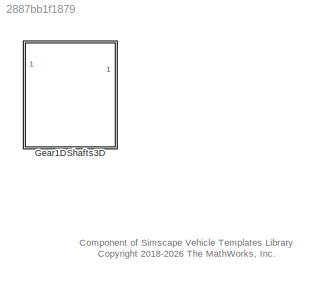
MODEL slx_2887bb1f1879
KIND library
CONFIG SolverName = VariableStepAuto
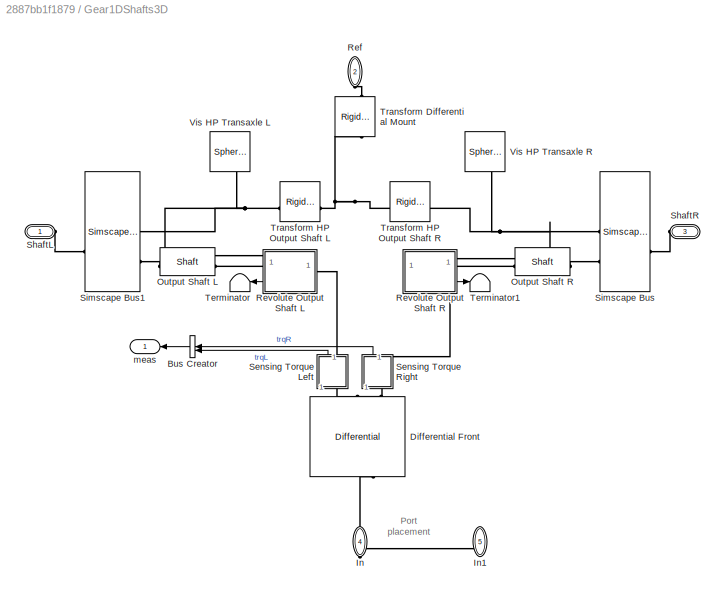
BLOCK [SubSystem] Gear1DShafts3D
  VariantControl = Gear1DShafts3D
BLOCK [BusCreator] Gear1DShafts3D/Bus Creator
  DisplayOption = bar
  InheritFromInputs = on
  Inputs = 2
BLOCK [Reference] Gear1DShafts3D/Differential Front  REF=sdl_lib/Gears/Differential
  NameLocation = right
  SourceBlock = sdl_lib/Gears/Differential
  SourceType = Differential
BLOCK [PMIOPort] Gear1DShafts3D/In
  NameLocation = right
  Port = 4
  Side = Right
BLOCK [PMIOPort] Gear1DShafts3D/In1
  NameLocation = right
  Port = 5
  Side = Right
BLOCK [Reference] Gear1DShafts3D/Output Shaft L  REF=Differential_Components/Shaft
  SourceBlock = Differential_Components/Shaft
  SourceType = Rigid Shaft
BLOCK [Reference] Gear1DShafts3D/Output Shaft R  REF=Differential_Components/Shaft
  SourceBlock = Differential_Components/Shaft
  SourceType = Rigid Shaft
BLOCK [PMIOPort] Gear1DShafts3D/Ref
  NameLocation = left
  Port = 2
  Side = Left
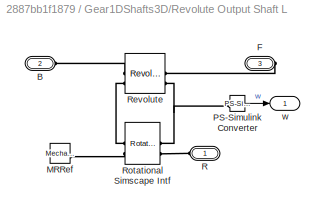
BLOCK [SubSystem] Gear1DShafts3D/Revolute Output Shaft L
BLOCK [PMIOPort] Gear1DShafts3D/Revolute Output Shaft L/B
  Port = 2
  Side = Left
BLOCK [PMIOPort] Gear1DShafts3D/Revolute Output Shaft L/F
  Port = 3
  Side = Right
BLOCK [Reference] Gear1DShafts3D/Revolute Output Shaft L/MRRef  REF=fl_lib/Mechanical/Rotational Elements/Mechanical
Rotational Reference
  SourceBlock = fl_lib/Mechanical/Rotational Elements/Mechanical\nRotational Reference
  SourceType = Mechanical\nRotational Reference
BLOCK [Reference] Gear1DShafts3D/Revolute Output Shaft L/PS-Simulink Converter  REF=nesl_utility/PS-Simulink
Converter
  SourceBlock = nesl_utility/PS-Simulink\nConverter
  SourceType = PS-Simulink\nConverter
BLOCK [PMIOPort] Gear1DShafts3D/Revolute Output Shaft L/R
  Side = Left
BLOCK [Reference] Gear1DShafts3D/Revolute Output Shaft L/Revolute  REF=sm_lib/Joints/Revolute Joint
  SourceBlock = sm_lib/Joints/Revolute Joint
  SourceType = Revolute Joint
BLOCK [Reference] Gear1DShafts3D/Revolute Output Shaft L/Rotational Simscape Intf  REF=sm_car_lib/Utilities/Rotational  (lib defined in slx_05426f0848b6, slx_5dc2867fb1c9)
Simscape Intf
  SourceBlock = sm_car_lib/Utilities/Rotational\nSimscape Intf
  SourceType = SubSystem
BLOCK [Outport] Gear1DShafts3D/Revolute Output Shaft L/w
  VectorParamsAs1DForOutWhenUnconnected = off
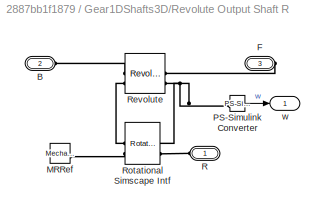
BLOCK [SubSystem] Gear1DShafts3D/Revolute Output Shaft R
BLOCK [PMIOPort] Gear1DShafts3D/Revolute Output Shaft R/B
  Port = 2
  Side = Left
BLOCK [PMIOPort] Gear1DShafts3D/Revolute Output Shaft R/F
  Port = 3
  Side = Right
BLOCK [Reference] Gear1DShafts3D/Revolute Output Shaft R/MRRef  REF=fl_lib/Mechanical/Rotational Elements/Mechanical
Rotational Reference
  SourceBlock = fl_lib/Mechanical/Rotational Elements/Mechanical\nRotational Reference
  SourceType = Mechanical\nRotational Reference
BLOCK [Reference] Gear1DShafts3D/Revolute Output Shaft R/PS-Simulink Converter  REF=nesl_utility/PS-Simulink
Converter
  SourceBlock = nesl_utility/PS-Simulink\nConverter
  SourceType = PS-Simulink\nConverter
BLOCK [PMIOPort] Gear1DShafts3D/Revolute Output Shaft R/R
  Side = Left
BLOCK [Reference] Gear1DShafts3D/Revolute Output Shaft R/Revolute  REF=sm_lib/Joints/Revolute Joint
  SourceBlock = sm_lib/Joints/Revolute Joint
  SourceType = Revolute Joint
BLOCK [Reference] Gear1DShafts3D/Revolute Output Shaft R/Rotational Simscape Intf  REF=sm_car_lib/Utilities/Rotational  (lib defined in slx_05426f0848b6, slx_5dc2867fb1c9)
Simscape Intf
  SourceBlock = sm_car_lib/Utilities/Rotational\nSimscape Intf
  SourceType = SubSystem
BLOCK [Outport] Gear1DShafts3D/Revolute Output Shaft R/w
  VectorParamsAs1DForOutWhenUnconnected = off
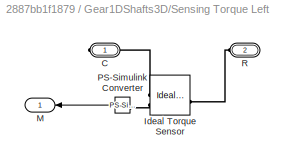
BLOCK [SubSystem] Gear1DShafts3D/Sensing Torque Left
  NameLocation = left
BLOCK [PMIOPort] Gear1DShafts3D/Sensing Torque Left/C
  Side = Right
BLOCK [Reference] Gear1DShafts3D/Sensing Torque Left/Ideal Torque Sensor  REF=fl_lib/Mechanical/Mechanical Sensors/Ideal Torque Sensor
  SourceBlock = fl_lib/Mechanical/Mechanical Sensors/Ideal Torque Sensor
  SourceType = Ideal Torque Sensor
BLOCK [Outport] Gear1DShafts3D/Sensing Torque Left/M
  VectorParamsAs1DForOutWhenUnconnected = off
BLOCK [Reference] Gear1DShafts3D/Sensing Torque Left/PS-Simulink Converter  REF=nesl_utility/PS-Simulink
Converter
  NameLocation = top
  SourceBlock = nesl_utility/PS-Simulink\nConverter
  SourceType = PS-Simulink\nConverter
BLOCK [PMIOPort] Gear1DShafts3D/Sensing Torque Left/R
  Port = 2
  Side = Left
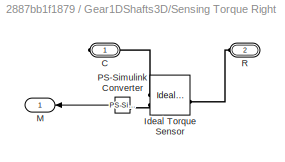
BLOCK [SubSystem] Gear1DShafts3D/Sensing Torque Right
  NameLocation = right
BLOCK [PMIOPort] Gear1DShafts3D/Sensing Torque Right/C
  Side = Right
BLOCK [Reference] Gear1DShafts3D/Sensing Torque Right/Ideal Torque Sensor  REF=fl_lib/Mechanical/Mechanical Sensors/Ideal Torque Sensor
  SourceBlock = fl_lib/Mechanical/Mechanical Sensors/Ideal Torque Sensor
  SourceType = Ideal Torque Sensor
BLOCK [Outport] Gear1DShafts3D/Sensing Torque Right/M
  VectorParamsAs1DForOutWhenUnconnected = off
BLOCK [Reference] Gear1DShafts3D/Sensing Torque Right/PS-Simulink Converter  REF=nesl_utility/PS-Simulink
Converter
  NameLocation = top
  SourceBlock = nesl_utility/PS-Simulink\nConverter
  SourceType = PS-Simulink\nConverter
BLOCK [PMIOPort] Gear1DShafts3D/Sensing Torque Right/R
  Port = 2
  Side = Left
BLOCK [PMIOPort] Gear1DShafts3D/ShaftL
  Side = Left
BLOCK [PMIOPort] Gear1DShafts3D/ShaftR
  Port = 3
  Side = Left
BLOCK [SimscapeBus] Gear1DShafts3D/Simscape Bus
  HierarchyStrings = Housing;Shaft
BLOCK [SimscapeBus] Gear1DShafts3D/Simscape Bus1
  HierarchyStrings = Housing;Shaft
BLOCK [Terminator] Gear1DShafts3D/Terminator
  NameLocation = top
BLOCK [Terminator] Gear1DShafts3D/Terminator1
  NameLocation = top
BLOCK [Reference] Gear1DShafts3D/Transform Differential Mount  REF=sm_lib/Frames and
Transforms/Rigid
Transform
  NameLocation = left
  SourceBlock = sm_lib/Frames and\nTransforms/Rigid\nTransform
  SourceType = Rigid\nTransform
BLOCK [Reference] Gear1DShafts3D/Transform HP Output Shaft L  REF=sm_lib/Frames and
Transforms/Rigid
Transform
  NameLocation = top
  SourceBlock = sm_lib/Frames and\nTransforms/Rigid\nTransform
  SourceType = Rigid\nTransform
BLOCK [Reference] Gear1DShafts3D/Transform HP Output Shaft R  REF=sm_lib/Frames and
Transforms/Rigid
Transform
  NameLocation = top
  SourceBlock = sm_lib/Frames and\nTransforms/Rigid\nTransform
  SourceType = Rigid\nTransform
BLOCK [Reference] Gear1DShafts3D/Vis HP Transaxle L  REF=sm_lib/Body Elements/Spherical Solid
  NameLocation = left
  SourceBlock = sm_lib/Body Elements/Spherical Solid
  SourceType = Spherical Solid
BLOCK [Reference] Gear1DShafts3D/Vis HP Transaxle R  REF=sm_lib/Body Elements/Spherical Solid
  NameLocation = right
  SourceBlock = sm_lib/Body Elements/Spherical Solid
  SourceType = Spherical Solid
BLOCK [Outport] Gear1DShafts3D/meas
  VectorParamsAs1DForOutWhenUnconnected = off
ANNOTATION (root): Component of Simscape Vehicle Templates Library <copyright redacted>
ANNOTATION Gear1DShafts3D: Port placement
LINE Gear1DShafts3D/Bus Creator:1 -> Gear1DShafts3D/meas:1
LINE Gear1DShafts3D/Revolute Output Shaft L/PS-Simulink Converter:1 -> Gear1DShafts3D/Revolute Output Shaft L/w:1
LINE Gear1DShafts3D/Revolute Output Shaft L:1 -> Gear1DShafts3D/Terminator:1
LINE Gear1DShafts3D/Revolute Output Shaft R/PS-Simulink Converter:1 -> Gear1DShafts3D/Revolute Output Shaft R/w:1
LINE Gear1DShafts3D/Revolute Output Shaft R:1 -> Gear1DShafts3D/Terminator1:1
LINE Gear1DShafts3D/Sensing Torque Left/PS-Simulink Converter:1 -> Gear1DShafts3D/Sensing Torque Left/M:1
LINE Gear1DShafts3D/Sensing Torque Left:1 -> Gear1DShafts3D/Bus Creator:2
LINE Gear1DShafts3D/Sensing Torque Right/PS-Simulink Converter:1 -> Gear1DShafts3D/Sensing Torque Right/M:1
LINE Gear1DShafts3D/Sensing Torque Right:1 -> Gear1DShafts3D/Bus Creator:1
PNET net1: Gear1DShafts3D/Differential Front:LConn1 -- Gear1DShafts3D/In1:RConn1 -- Gear1DShafts3D/In:RConn1
PLINE Gear1DShafts3D/Differential Front:RConn1 -- Gear1DShafts3D/Sensing Torque Right:LConn1
PLINE Gear1DShafts3D/Differential Front:RConn2 -- Gear1DShafts3D/Sensing Torque Left:LConn1
PLINE Gear1DShafts3D/Output Shaft L:LConn1 -- Gear1DShafts3D/Simscape Bus1:LConn2
PLINE Gear1DShafts3D/Output Shaft L:RConn1 -- Gear1DShafts3D/Revolute Output Shaft L:RConn1
PLINE Gear1DShafts3D/Output Shaft R:LConn1 -- Gear1DShafts3D/Simscape Bus:LConn2
PLINE Gear1DShafts3D/Output Shaft R:RConn1 -- Gear1DShafts3D/Revolute Output Shaft R:RConn1
PLINE Gear1DShafts3D/Ref:RConn1 -- Gear1DShafts3D/Transform Differential Mount:LConn1
PLINE Gear1DShafts3D/Revolute Output Shaft L/B:RConn1 -- Gear1DShafts3D/Revolute Output Shaft L/Revolute:LConn1
PLINE Gear1DShafts3D/Revolute Output Shaft L/F:RConn1 -- Gear1DShafts3D/Revolute Output Shaft L/Revolute:RConn1
PLINE Gear1DShafts3D/Revolute Output Shaft L/MRRef:LConn1 -- Gear1DShafts3D/Revolute Output Shaft L/Rotational Simscape Intf:LConn2
PNET net2: Gear1DShafts3D/Revolute Output Shaft L/PS-Simulink Converter:LConn1 -- Gear1DShafts3D/Revolute Output Shaft L/Revolute:RConn2 -- Gear1DShafts3D/Revolute Output Shaft L/Rotational Simscape Intf:RConn1
PLINE Gear1DShafts3D/Revolute Output Shaft L/R:RConn1 -- Gear1DShafts3D/Revolute Output Shaft L/Rotational Simscape Intf:RConn2
PLINE Gear1DShafts3D/Revolute Output Shaft L/Revolute:LConn2 -- Gear1DShafts3D/Revolute Output Shaft L/Rotational Simscape Intf:LConn1
PLINE Gear1DShafts3D/Revolute Output Shaft L:LConn1 -- Gear1DShafts3D/Sensing Torque Left:RConn1
PNET net3: Gear1DShafts3D/Revolute Output Shaft L:LConn2 -- Gear1DShafts3D/Simscape Bus1:LConn1 -- Gear1DShafts3D/Transform HP Output Shaft L:RConn1 -- Gear1DShafts3D/Vis HP Transaxle L:RConn1
PLINE Gear1DShafts3D/Revolute Output Shaft R/B:RConn1 -- Gear1DShafts3D/Revolute Output Shaft R/Revolute:LConn1
PLINE Gear1DShafts3D/Revolute Output Shaft R/F:RConn1 -- Gear1DShafts3D/Revolute Output Shaft R/Revolute:RConn1
PLINE Gear1DShafts3D/Revolute Output Shaft R/MRRef:LConn1 -- Gear1DShafts3D/Revolute Output Shaft R/Rotational Simscape Intf:LConn2
PNET net4: Gear1DShafts3D/Revolute Output Shaft R/PS-Simulink Converter:LConn1 -- Gear1DShafts3D/Revolute Output Shaft R/Revolute:RConn2 -- Gear1DShafts3D/Revolute Output Shaft R/Rotational Simscape Intf:RConn1
PLINE Gear1DShafts3D/Revolute Output Shaft R/R:RConn1 -- Gear1DShafts3D/Revolute Output Shaft R/Rotational Simscape Intf:RConn2
PLINE Gear1DShafts3D/Revolute Output Shaft R/Revolute:LConn2 -- Gear1DShafts3D/Revolute Output Shaft R/Rotational Simscape Intf:LConn1
PLINE Gear1DShafts3D/Revolute Output Shaft R:LConn1 -- Gear1DShafts3D/Sensing Torque Right:RConn1
PNET net5: Gear1DShafts3D/Revolute Output Shaft R:LConn2 -- Gear1DShafts3D/Simscape Bus:LConn1 -- Gear1DShafts3D/Transform HP Output Shaft R:RConn1 -- Gear1DShafts3D/Vis HP Transaxle R:RConn1
PLINE Gear1DShafts3D/Sensing Torque Left/C:RConn1 -- Gear1DShafts3D/Sensing Torque Left/Ideal Torque Sensor:RConn1
PLINE Gear1DShafts3D/Sensing Torque Left/Ideal Torque Sensor:LConn1 -- Gear1DShafts3D/Sensing Torque Left/R:RConn1
PLINE Gear1DShafts3D/Sensing Torque Left/Ideal Torque Sensor:RConn2 -- Gear1DShafts3D/Sensing Torque Left/PS-Simulink Converter:LConn1
PLINE Gear1DShafts3D/Sensing Torque Right/C:RConn1 -- Gear1DShafts3D/Sensing Torque Right/Ideal Torque Sensor:RConn1
PLINE Gear1DShafts3D/Sensing Torque Right/Ideal Torque Sensor:LConn1 -- Gear1DShafts3D/Sensing Torque Right/R:RConn1
PLINE Gear1DShafts3D/Sensing Torque Right/Ideal Torque Sensor:RConn2 -- Gear1DShafts3D/Sensing Torque Right/PS-Simulink Converter:LConn1
PLINE Gear1DShafts3D/ShaftL:RConn1 -- Gear1DShafts3D/Simscape Bus1:RConn1
PLINE Gear1DShafts3D/ShaftR:RConn1 -- Gear1DShafts3D/Simscape Bus:RConn1
PNET net6: Gear1DShafts3D/Transform Differential Mount:RConn1 -- Gear1DShafts3D/Transform HP Output Shaft L:LConn1 -- Gear1DShafts3D/Transform HP Output Shaft R:LConn1
note: PNET lines group multi-terminal physical nets as a canonical sorted terminal list (undirected conserving connections); 2-terminal nets keep the pairwise PLINE form
